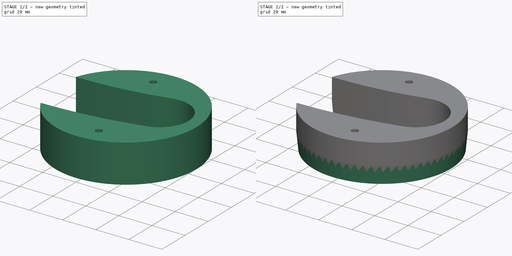
[diagram: build sequence overview — one tinted view per stage of 2, left to right]
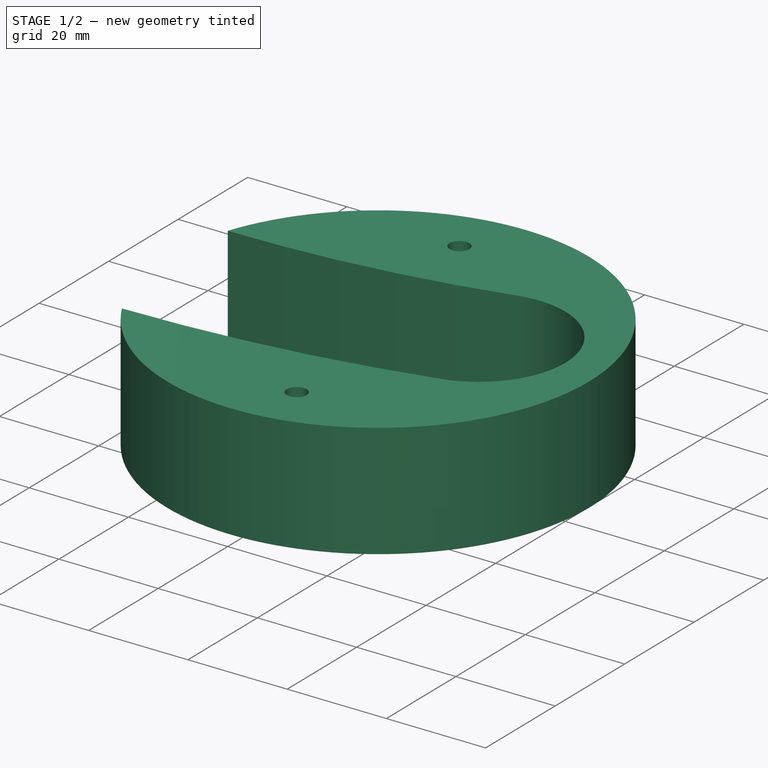
[diagram: stage 1 of 2 — iso view after this stage's code; geometry added in this stage tinted green]
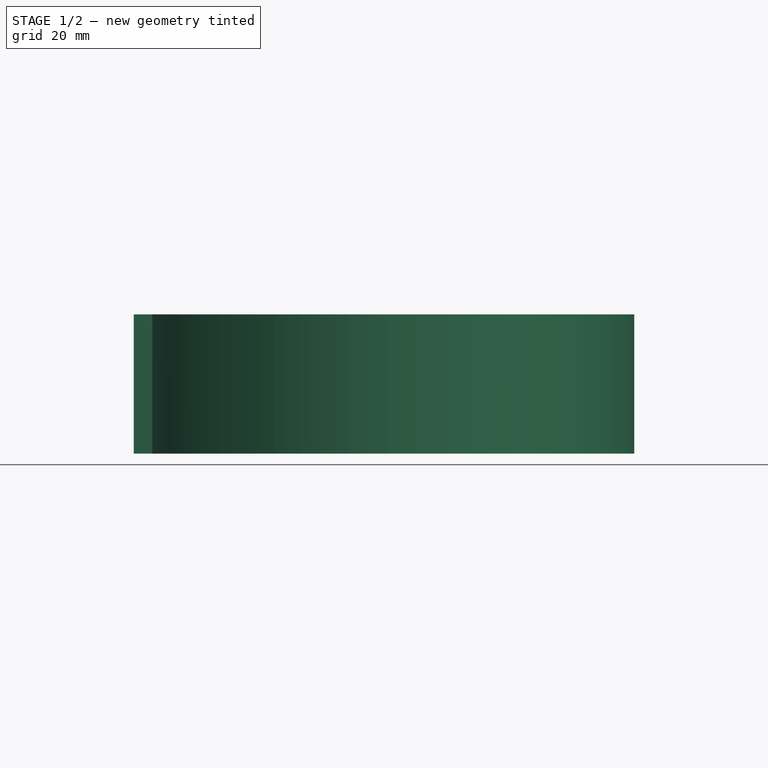
[diagram: stage 1 of 2 — front view after this stage's code; geometry added in this stage tinted green]
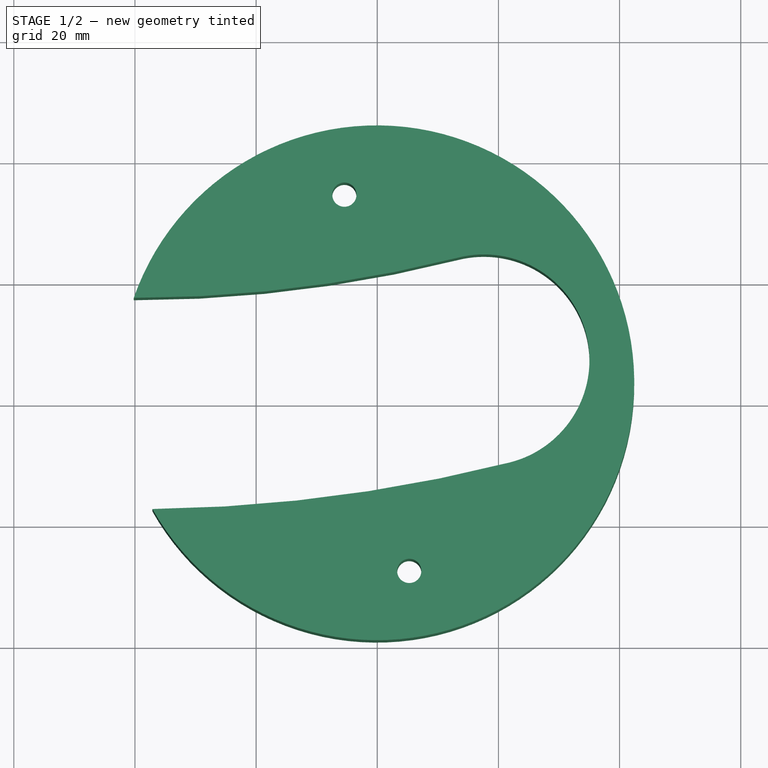
[diagram: stage 1 of 2 — top view after this stage's code; geometry added in this stage tinted green]
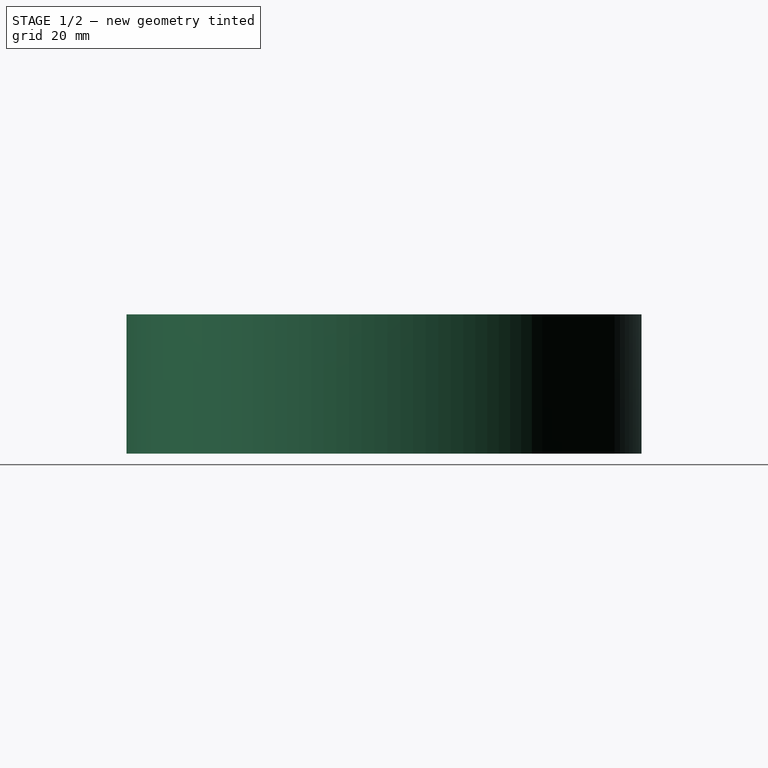
[diagram: stage 1 of 2 — right view after this stage's code; geometry added in this stage tinted green]
FCSTD DOCUMENT  (FreeCAD 0.19R24291 (Git))
Label: cup_lifterV2
License: All rights reserved
LicenseURL: http://en.wikipedia.org/wiki/All_rights_reserved
objects: Sketcher::SketchObject×1, PartDesign::Pad×1, PartDesign::Chamfer×1, PartDesign::Body×1
note: 6 computed .brp shape members not serialized (recipe doc carries the construction recipe); baked Part::Feature solids carry a one-line shape summary decoded from their .brp

FEATURE [Sketcher::SketchObject] Sketch
  FullyConstrained = false
  MapMode = 5
  Support = -> [XY_Plane]
  sketch-geometry (10):
    g0: ArcOfCircle CenterX=0 CenterY=235 CenterZ=0 NormalX=0 NormalY=0 NormalZ=1 AngleXU=0 Radius=235 StartAngle=4.71239 EndAngle=4.95997
    g1: ArcOfCircle CenterX=0 CenterY=235 CenterZ=0 NormalX=0 NormalY=0 NormalZ=1 AngleXU=0 Radius=217.56 StartAngle=4.71149 EndAngle=4.95997
    g2: ArcOfCircle CenterX=0 CenterY=235 CenterZ=0 NormalX=0 NormalY=0 NormalZ=1 AngleXU=0 Radius=252.44 StartAngle=4.72381 EndAngle=4.95997
    g3: ArcOfCircle CenterX=57.5898 CenterY=7.16581 CenterZ=0 NormalX=0 NormalY=0 NormalZ=1 AngleXU=0 Radius=17.4403 StartAngle=4.95997 EndAngle=8.10157
    g4: ArcOfCircle CenterX=39.9237 CenterY=3.4161 CenterZ=0 NormalX=0 NormalY=0 NormalZ=1 AngleXU=0 Radius=42.5 StartAngle=3.65409 EndAngle=9.08849
    g5: LineSegment StartX=74.65 StartY=10.7869 StartZ=0 EndX=81.4975 EndY=12.2403 EndZ=0
    g6: Circle CenterX=34.5692 CenterY=34.4755 CenterZ=0 NormalX=0 NormalY=0 NormalZ=1 AngleXU=0 Radius=2
    g7: Circle CenterX=45.2781 CenterY=-27.6433 CenterZ=0 NormalX=0 NormalY=0 NormalZ=1 AngleXU=0 Radius=2
    g8: LineSegment StartX=34.5692 StartY=34.4755 StartZ=0 EndX=39.9237 EndY=3.4161 EndZ=0
    g9: LineSegment StartX=39.9237 StartY=3.4161 StartZ=0 EndX=45.2781 EndY=-27.6433 EndZ=0
  constraints (29):
    c: PointOnObject(g0,g-2)
    c: Coincident(g0,g-1)
    c: Radius(g0) = 235
    c: Coincident(g1,g0)
    c: Coincident(g2,g1)
    c: Coincident(g3,g0)
    c: Coincident(g3,g1)
    c: Coincident(g3,g2)
    c: Coincident(g4,g1)
    c: Coincident(g4,g2)
    c: Distance(g2,g1) = 35
    c: Tangent(g1,g3)
    c: Tangent(g3,g2)
    c: PointOnObject(g4,g0)
    c: Radius(g4) = 42.5
    c: PointOnObject(g5,g3)
    c: PointOnObject(g5,g4)
    c: Perpendicular(g3,g5)
    c: Perpendicular(g4,g5)
    c: Distance(g5) = 7
    c: Equal(g7,g6)
    c: Coincident(g8,g6)
    c: Coincident(g8,g4)
    c: Coincident(g9,g4)
    c: Coincident(g9,g7)
    c: Equal(g8,g9)
    c: Perpendicular(g0,g8)
    c: Perpendicular(g0,g9)
    c: Diameter(g7) = 4
FEATURE [PartDesign::Pad] Pad
  Direction = (1,1,1)
  Length = 23
  Length2 = 100
  Profile = -> Sketch
  Type = 0
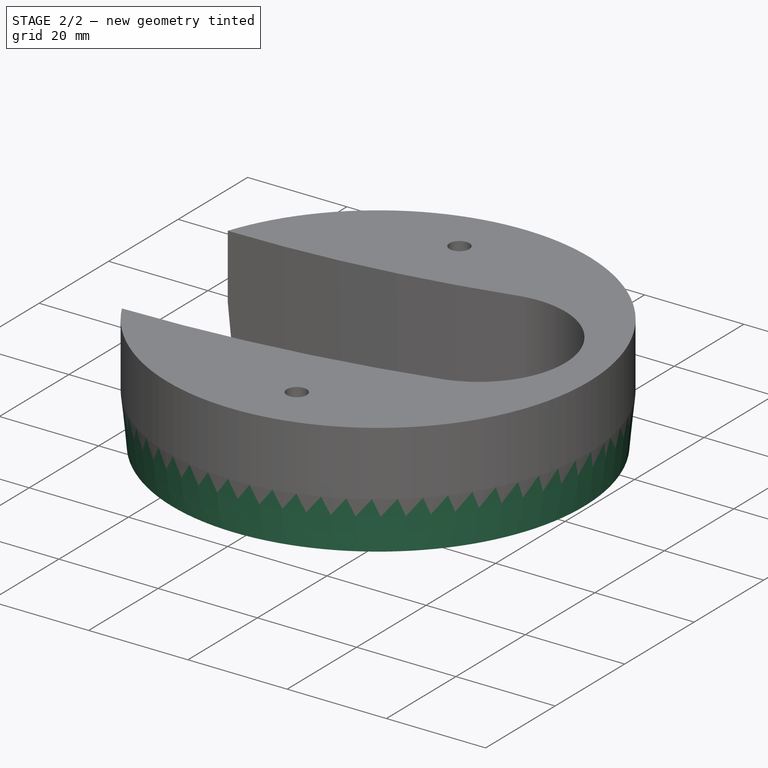
[diagram: stage 2 of 2 — iso view after this stage's code; geometry added in this stage tinted green]
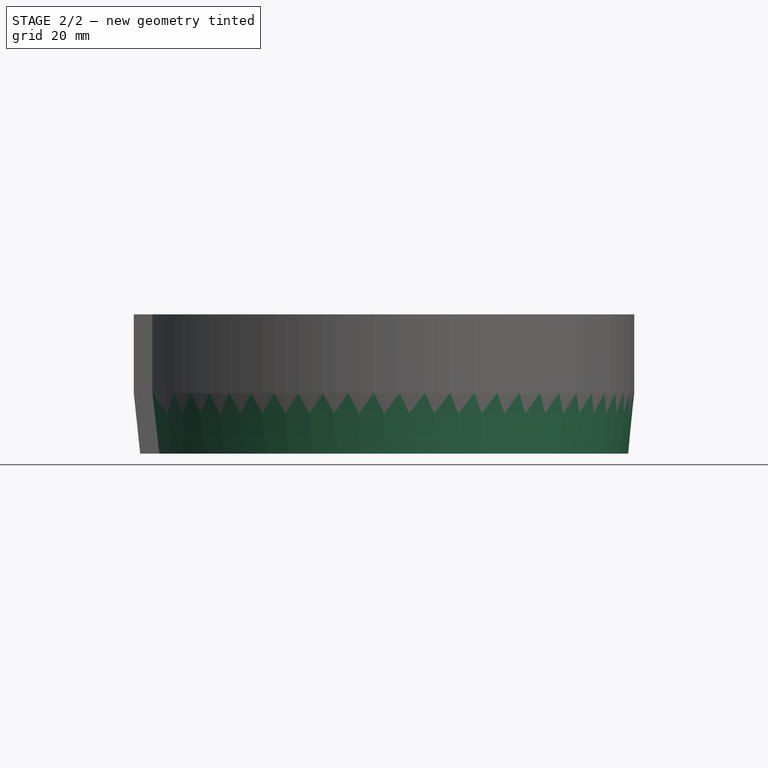
[diagram: stage 2 of 2 — front view after this stage's code; geometry added in this stage tinted green]
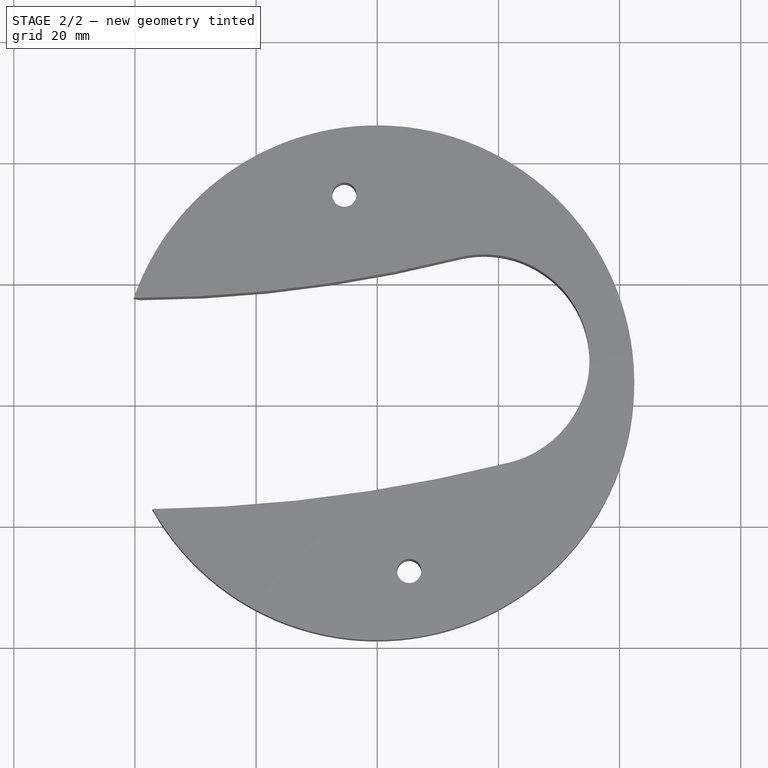
[diagram: stage 2 of 2 — top view after this stage's code; geometry added in this stage tinted green]
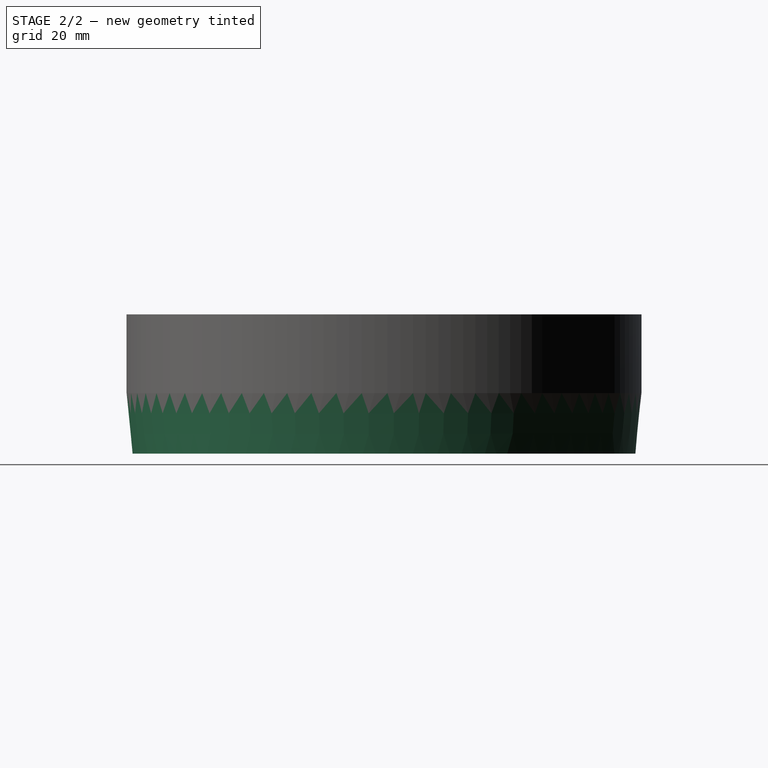
[diagram: stage 2 of 2 — right view after this stage's code; geometry added in this stage tinted green]
FEATURE [PartDesign::Chamfer] Chamfer
  Angle = 45
  Base = -> Pad [Edge3]
  BaseFeature = -> Pad
  ChamferType = 1
  FlipDirection = false
  Size = 10
  Size2 = 1
  SupportTransform = false
FEATURE [PartDesign::Body] Body
  Group = -> [Sketch,Pad,Chamfer]
  Origin = -> Origin
  Placement = pos=(0,0,0) rot=(1,0,0;3.14159rad)
  Tip = -> Chamfer
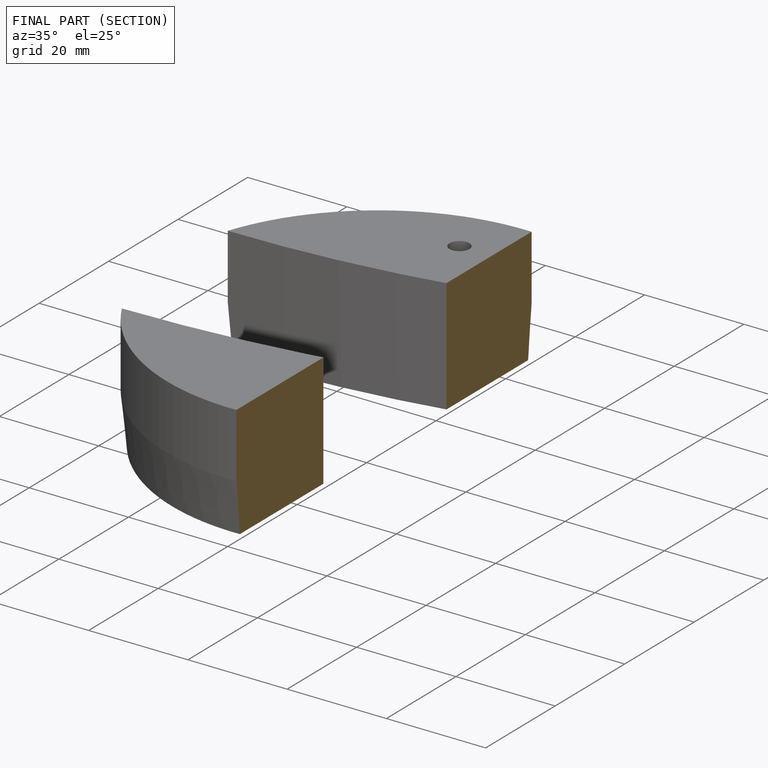
[diagram: finished part — half-section view (interior)]
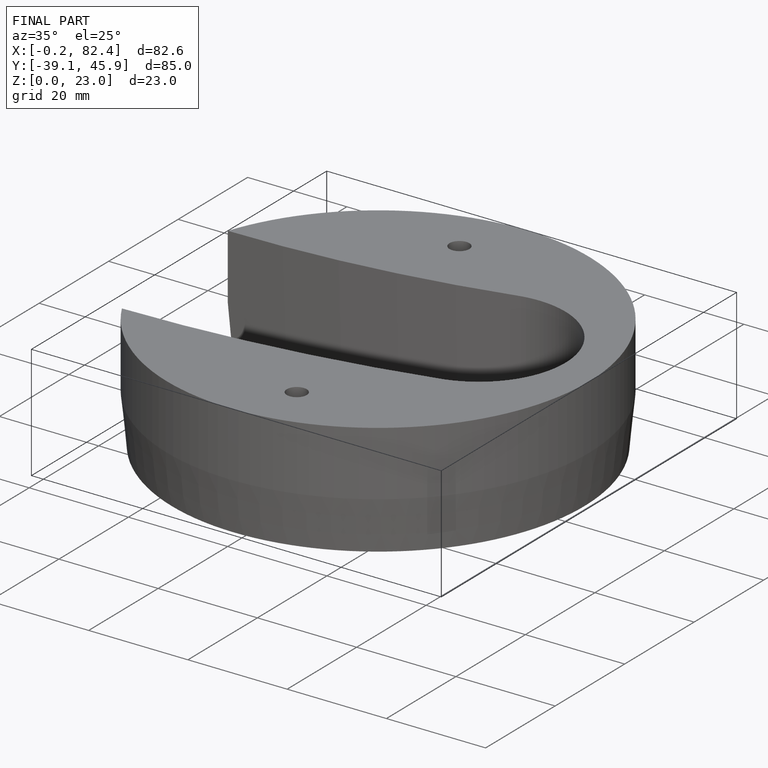
[diagram: finished part — iso view with bounding-box wireframe]
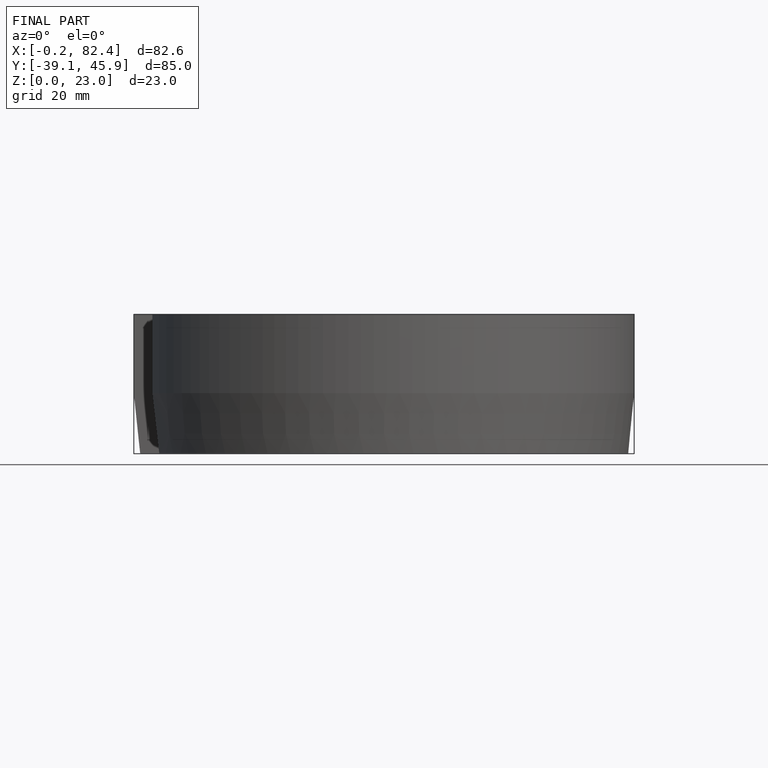
[diagram: finished part — front view with bounding-box wireframe]
